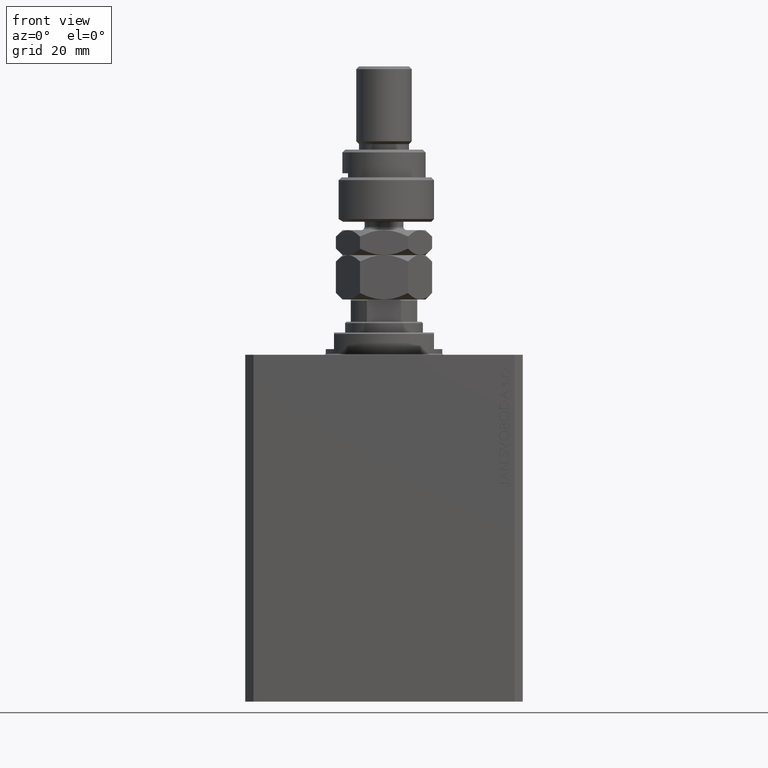
[diagram: clean part render]
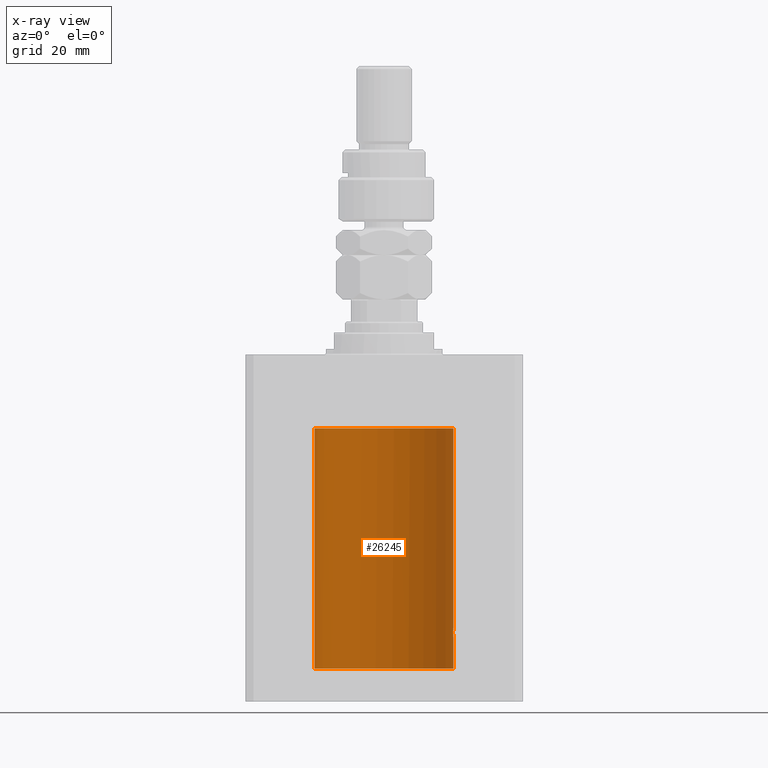
[diagram: x-ray — body ghosted, one internal face saturated and labeled with its STEP entity id]
A machine part, front view, then the same camera in x-ray: the body is ghosted and one INTERNAL B-rep face — a face not visible from any outside direction — is saturated and labeled: STEP entity #26245.
In plain terms, the highlighted cylindrical surface (partial cylindrical patch) has radius 25 mm, axis along (0, 0, 1).
Its self-contained STEP definition (entity closure, byte-faithful):
#223 = CARTESIAN_POINT ( 'NONE',  ( 25.00000000000000000, -1.072061970195355044E-23, -98.00000000000000000 ) ) ;
#1902 = AXIS2_PLACEMENT_3D ( 'NONE', #26651, #38758, #15471 ) ;
#1931 = CARTESIAN_POINT ( 'NONE',  ( 24.96516502151963124, 1.322522485723470531, -101.5059723511098184 ) ) ;
#2121 = CARTESIAN_POINT ( 'NONE',  ( -24.99718407171789991, 0.4276024655076519632, -26.96566959702169086 ) ) ;
#2694 = CARTESIAN_POINT ( 'NONE',  ( 24.99496001540385848, 0.5180074392840622322, -101.9361479946135205 ) ) ;
#2753 = CARTESIAN_POINT ( 'NONE',  ( 24.91987158875419794, 2.000000000000375255, -100.0000000000000000 ) ) ;
#4134 = VECTOR ( 'NONE', #32439, 1000.000000000000000 ) ;
#4308 = CARTESIAN_POINT ( 'NONE',  ( 25.00000000000000000, 0.000000000000000000, -113.0999999999999943 ) ) ;
#4346 = ORIENTED_EDGE ( 'NONE', *, *, #36319, .T. ) ;
#4996 = CARTESIAN_POINT ( 'NONE',  ( 24.92092960952687264, 1.986938806757485132, -99.73699118910590755 ) ) ;
#5230 = CYLINDRICAL_SURFACE ( 'NONE', #14351, 25.00000000000000000 ) ;
#5239 = CARTESIAN_POINT ( 'NONE',  ( 24.93982559358191153, 1.735040297787688646, -98.99670286233153149 ) ) ;
#5389 = CARTESIAN_POINT ( 'NONE',  ( -24.97118339206214088, 1.199999999999987521, -26.59999999999999787 ) ) ;
#5960 = CARTESIAN_POINT ( 'NONE',  ( 24.99895171050671294, 0.2622427397369110347, -101.9870152263268182 ) ) ;
#6487 = DIRECTION ( 'NONE',  ( -0.000000000000000000, -0.000000000000000000, 1.000000000000000000 ) ) ;
#8040 = CARTESIAN_POINT ( 'NONE',  ( 24.94947734723934829, 1.590234439578154468, -98.78011295253192259 ) ) ;
#8292 = CARTESIAN_POINT ( 'NONE',  ( 24.91987158875419439, 2.000000000000375699, -99.86952236750346401 ) ) ;
#8982 = CARTESIAN_POINT ( 'NONE',  ( -24.97118339206214088, 1.199999999999987521, -26.59999999999999787 ) ) ;
#9032 = CARTESIAN_POINT ( 'NONE',  ( 24.97045842037802998, 1.219816859706691625, -98.40971381657300299 ) ) ;
#9103 = LINE ( 'NONE', #17735, #4134 ) ;
#9390 = EDGE_CURVE ( 'NONE', #39814, #49258, #26968, .T. ) ;
#9903 = EDGE_CURVE ( 'NONE', #19243, #13733, #9103, .T. ) ;
#10025 = CARTESIAN_POINT ( 'NONE',  ( 25.00000000000000355, 0.1322318523520167877, -102.0000000000000142 ) ) ;
#10646 = B_SPLINE_CURVE_WITH_KNOTS ( 'NONE', 3,
 ( #24270, #8292, #4996, #35659, #43746, #31366, #5239, #8040, #28074, #20469, #9032, #35904, #31622, #47314, #19967, #11836, #35409, #223 ),
 .UNSPECIFIED., .F., .F.,
 ( 4, 2, 2, 2, 2, 2, 2, 2, 4 ),
 ( 0.003128423524421375217, 0.003519296810509137119, 0.003910170096596899021, 0.004301043382684660923, 0.004691916668772423693, 0.005082789954860184728, 0.005473663240947946630, 0.005864536527035708532, 0.006255409813123470435 ),
 .UNSPECIFIED. ) ;
#11724 = CARTESIAN_POINT ( 'NONE',  ( -25.00000000000000000, 3.061616997868383043E-15, -113.0999999999999943 ) ) ;
#11836 = CARTESIAN_POINT ( 'NONE',  ( 24.99894413130754600, 0.2631018416927612402, -98.01307842488789390 ) ) ;
#13483 = VERTEX_POINT ( 'NONE', #2753 ) ;
#13733 = VERTEX_POINT ( 'NONE', #31104 ) ;
#13824 = CARTESIAN_POINT ( 'NONE',  ( 24.99196954445030627, 0.6450912151121352966, -101.8976436764501869 ) ) ;
#14351 = AXIS2_PLACEMENT_3D ( 'NONE', #17915, #6487, #21716 ) ;
#14529 = ORIENTED_EDGE ( 'NONE', *, *, #17509, .T. ) ;
#14742 = ORIENTED_EDGE ( 'NONE', *, *, #9903, .T. ) ;
#15341 = CARTESIAN_POINT ( 'NONE',  ( 25.00000000000000000, -1.072061970195355044E-23, -98.00000000000000000 ) ) ;
#15471 = DIRECTION ( 'NONE',  ( 1.000000000000000000, 0.000000000000000000, 0.000000000000000000 ) ) ;
#16478 = EDGE_CURVE ( 'NONE', #13483, #20781, #10646, .T. ) ;
#16811 = AXIS2_PLACEMENT_3D ( 'NONE', #25490, #34077, #17888 ) ;
#17485 = EDGE_CURVE ( 'NONE', #19243, #39814, #23740, .T. ) ;
#17509 = EDGE_CURVE ( 'NONE', #20781, #33838, #46376, .T. ) ;
#17735 = CARTESIAN_POINT ( 'NONE',  ( 25.00000000000000000, 0.000000000000000000, -113.0999999999999943 ) ) ;
#17888 = DIRECTION ( 'NONE',  ( 1.000000000000000000, 0.000000000000000000, 0.000000000000000000 ) ) ;
#17915 = CARTESIAN_POINT ( 'NONE',  ( 0.000000000000000000, 0.000000000000000000, -113.0999999999999943 ) ) ;
#18723 = ORIENTED_EDGE ( 'NONE', *, *, #48669, .T. ) ;
#19243 = VERTEX_POINT ( 'NONE', #27785 ) ;
#19245 = VERTEX_POINT ( 'NONE', #8982 ) ;
#19615 = ORIENTED_EDGE ( 'NONE', *, *, #9390, .F. ) ;
#19967 = CARTESIAN_POINT ( 'NONE',  ( 24.99493190796009046, 0.5194315891213243663, -98.06421314474680173 ) ) ;
#20469 = CARTESIAN_POINT ( 'NONE',  ( 24.96525661602875701, 1.320872503675244003, -98.49244428507738292 ) ) ;
#20781 = VERTEX_POINT ( 'NONE', #15341 ) ;
#21444 = CARTESIAN_POINT ( 'NONE',  ( 24.98454161695537223, 0.8873356620645981296, -101.7971726743456742 ) ) ;
#21716 = DIRECTION ( 'NONE',  ( 1.000000000000000000, 0.000000000000000000, 0.000000000000000000 ) ) ;
#22708 = VECTOR ( 'NONE', #26472, 1000.000000000000000 ) ;
#23107 = EDGE_LOOP ( 'NONE', ( #19615, #47144, #14742, #36042, #28062, #14529, #18723, #4346 ) ) ;
#23740 = CIRCLE ( 'NONE', #1902, 25.00000000000000000 ) ;
#24179 = CARTESIAN_POINT ( 'NONE',  ( -25.00000000000000355, 0.2156805908219409651, -26.99999999999999645 ) ) ;
#24270 = CARTESIAN_POINT ( 'NONE',  ( 24.91987158875419794, 2.000000000000375255, -100.0000000000000000 ) ) ;
#24992 = CARTESIAN_POINT ( 'NONE',  ( 24.91987158875419439, 2.000000000000375699, -100.2610752061100072 ) ) ;
#25490 = CARTESIAN_POINT ( 'NONE',  ( 0.000000000000000000, 0.000000000000000000, -26.60000000000000142 ) ) ;
#25499 = CARTESIAN_POINT ( 'NONE',  ( 24.91987158875419794, 2.000000000000375255, -100.0000000000000000 ) ) ;
#26232 = VECTOR ( 'NONE', #42073, 1000.000000000000000 ) ;
#26245 = ADVANCED_FACE ( 'NONE', ( #28311 ), #5230, .F. ) ;
#26472 = DIRECTION ( 'NONE',  ( -0.000000000000000000, -0.000000000000000000, 1.000000000000000000 ) ) ;
#26651 = CARTESIAN_POINT ( 'NONE',  ( 0.000000000000000000, 0.000000000000000000, -113.0999999999999943 ) ) ;
#26968 = LINE ( 'NONE', #11724, #22708 ) ;
#27785 = CARTESIAN_POINT ( 'NONE',  ( 25.00000000000000000, 0.000000000000000000, -113.0999999999999943 ) ) ;
#28062 = ORIENTED_EDGE ( 'NONE', *, *, #16478, .T. ) ;
#28074 = CARTESIAN_POINT ( 'NONE',  ( 24.95467834240023919, 1.507571193169164436, -98.67914516237102873 ) ) ;
#28311 = FACE_OUTER_BOUND ( 'NONE', #23107, .T. ) ;
#29304 = CARTESIAN_POINT ( 'NONE',  ( 24.97046928552373046, 1.219632852334577633, -101.5904672177837540 ) ) ;
#29802 = CARTESIAN_POINT ( 'NONE',  ( 24.92422785753204906, 1.947526681255389525, -100.5244453533215392 ) ) ;
#31104 = CARTESIAN_POINT ( 'NONE',  ( 25.00000000000000000, 3.613683980139323145E-15, -102.0000000000000142 ) ) ;
#31366 = CARTESIAN_POINT ( 'NONE',  ( 24.93533359819881667, 1.797683477752171743, -99.11371245509397454 ) ) ;
#31622 = CARTESIAN_POINT ( 'NONE',  ( 24.98457651818866765, 0.8863534138924961114, -98.20234421602245334 ) ) ;
#32439 = DIRECTION ( 'NONE',  ( -0.000000000000000000, -0.000000000000000000, 1.000000000000000000 ) ) ;
#32777 = CARTESIAN_POINT ( 'NONE',  ( -24.98680550328683125, 0.8376193197215402453, -26.82896000732461061 ) ) ;
#32836 = CARTESIAN_POINT ( 'NONE',  ( 24.94948532700468391, 1.599156973339999066, -101.2291341524913690 ) ) ;
#33097 = CARTESIAN_POINT ( 'NONE',  ( 24.93900639076503722, 1.748128916801924504, -101.0059564568424264 ) ) ;
#33838 = VERTEX_POINT ( 'NONE', #39903 ) ;
#34077 = DIRECTION ( 'NONE',  ( 0.000000000000000000, 0.000000000000000000, 1.000000000000000000 ) ) ;
#35409 = CARTESIAN_POINT ( 'NONE',  ( 25.00000000000000000, 0.1305261351234896783, -97.99999999999998579 ) ) ;
#35505 = CARTESIAN_POINT ( 'NONE',  ( -25.00000000000000000, 3.060241555953638093E-15, -26.99999999999999645 ) ) ;
#35659 = CARTESIAN_POINT ( 'NONE',  ( 24.92495585240437350, 1.935777409849491759, -99.48051441220836466 ) ) ;
#35904 = CARTESIAN_POINT ( 'NONE',  ( 24.98009620012517829, 1.003265033550135854, -98.26494305889434600 ) ) ;
#36042 = ORIENTED_EDGE ( 'NONE', *, *, #43649, .T. ) ;
#36056 = CARTESIAN_POINT ( 'NONE',  ( -25.00000000000000000, 3.060241555953638093E-15, -26.99999999999999645 ) ) ;
#36319 = EDGE_CURVE ( 'NONE', #19245, #49258, #49530, .T. ) ;
#36361 = B_SPLINE_CURVE_WITH_KNOTS ( 'NONE', 3,
 ( #40673, #10025, #5960, #2694, #13824, #21444, #36890, #29304, #1931, #32836, #33097, #29802, #24992, #25499 ),
 .UNSPECIFIED., .F., .F.,
 ( 4, 2, 2, 2, 2, 2, 4 ),
 ( 3.511612687242254074E-18, 0.0003910529405526748294, 0.0007821058811053461894, 0.001173158821658017766, 0.001564211762210689343, 0.002346317643316032063, 0.003128423524421375217 ),
 .UNSPECIFIED. ) ;
#36890 = CARTESIAN_POINT ( 'NONE',  ( 24.98014008684978648, 1.002218476749560327, -101.7356982428406553 ) ) ;
#38758 = DIRECTION ( 'NONE',  ( 0.000000000000000000, 0.000000000000000000, 1.000000000000000000 ) ) ;
#39814 = VERTEX_POINT ( 'NONE', #40291 ) ;
#39903 = CARTESIAN_POINT ( 'NONE',  ( 25.00000000000000000, 0.000000000000000000, -26.60000000000000142 ) ) ;
#40230 = CIRCLE ( 'NONE', #16811, 25.00000000000000000 ) ;
#40291 = CARTESIAN_POINT ( 'NONE',  ( -25.00000000000000000, 3.061616997868383043E-15, -113.0999999999999943 ) ) ;
#40355 = CARTESIAN_POINT ( 'NONE',  ( -24.97950800354324485, 1.026770500031154887, -26.72992212497661768 ) ) ;
#40673 = CARTESIAN_POINT ( 'NONE',  ( 25.00000000000000000, 3.613683980139323145E-15, -102.0000000000000142 ) ) ;
#42073 = DIRECTION ( 'NONE',  ( -0.000000000000000000, -0.000000000000000000, 1.000000000000000000 ) ) ;
#43649 = EDGE_CURVE ( 'NONE', #13733, #13483, #36361, .T. ) ;
#43746 = CARTESIAN_POINT ( 'NONE',  ( 24.92790171662583276, 1.897957730269075105, -99.35585098575664631 ) ) ;
#46376 = LINE ( 'NONE', #4308, #26232 ) ;
#47144 = ORIENTED_EDGE ( 'NONE', *, *, #17485, .F. ) ;
#47314 = CARTESIAN_POINT ( 'NONE',  ( 24.99199530066696795, 0.6440939830361788188, -98.10201906410962636 ) ) ;
#48669 = EDGE_CURVE ( 'NONE', #33838, #19245, #40230, .T. ) ;
#49258 = VERTEX_POINT ( 'NONE', #35505 ) ;
#49530 = B_SPLINE_CURVE_WITH_KNOTS ( 'NONE', 3,
 ( #5389, #40355, #32777, #2121, #24179, #36056 ),
 .UNSPECIFIED., .F., .F.,
 ( 4, 2, 4 ),
 ( 0.000000000000000000, 0.0006408866495840856480, 0.001281773299168171296 ),
 .UNSPECIFIED. ) ;